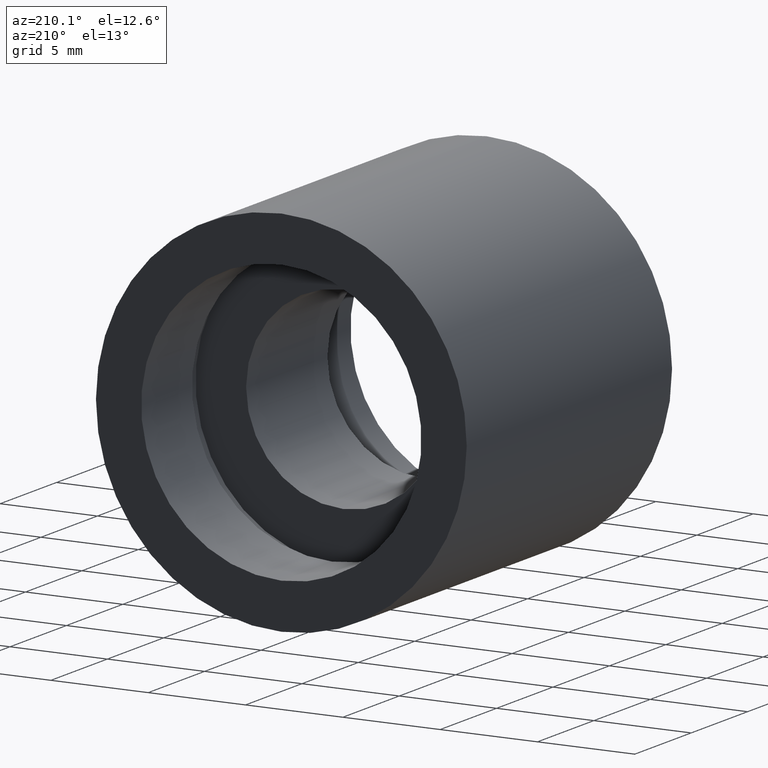
[diagram: clean part render]
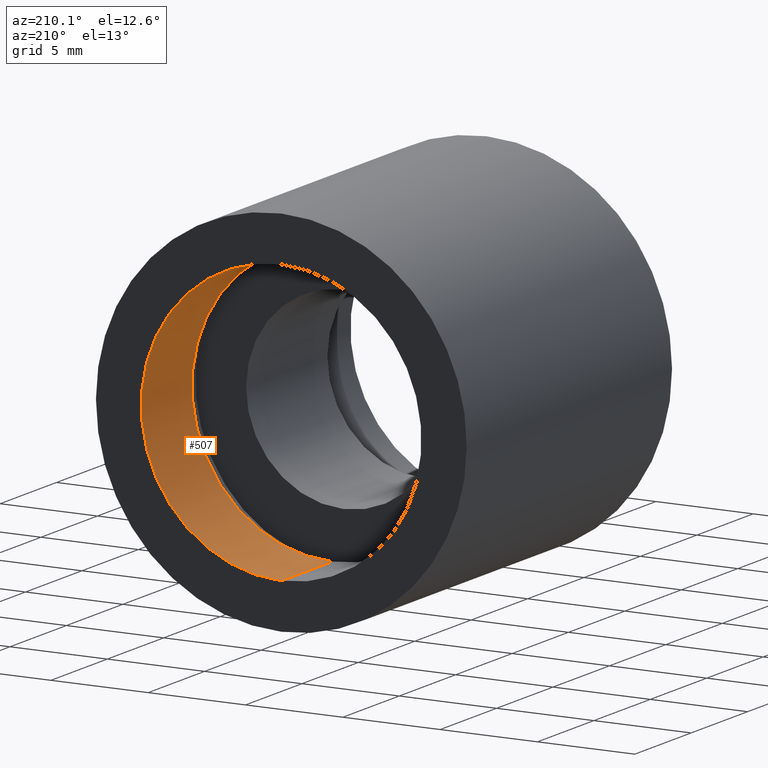
[diagram: same view with one face highlighted and labeled with its STEP entity id]
A machine part, auxiliary view. The second image highlights one B-rep face of the part: STEP entity #507.
In plain terms, the highlighted cylindrical surface (partial cylindrical patch) has radius 7.2 mm, axis along (-0, 1, -0).
Its self-contained STEP definition (entity closure, byte-faithful):
#2 = DIRECTION ( 'NONE',  ( -0.0000000000000000000, 1.000000000000000000, -0.0000000000000000000 ) ) ;
#4 = AXIS2_PLACEMENT_3D ( 'NONE', #235, #575, #347 ) ;
#39 = CARTESIAN_POINT ( 'NONE',  ( 8.817456953860961000E-016, 13.69999999999999000, -7.200000000000015300 ) ) ;
#44 = ORIENTED_EDGE ( 'NONE', *, *, #319, .T. ) ;
#48 = ORIENTED_EDGE ( 'NONE', *, *, #413, .F. ) ;
#72 = EDGE_CURVE ( 'NONE', #444, #535, #573, .T. ) ;
#87 = CARTESIAN_POINT ( 'NONE',  ( 8.817456953860963000E-016, 18.19999999999999600, -7.200000000000017100 ) ) ;
#137 = CARTESIAN_POINT ( 'NONE',  ( 8.817456953860961000E-016, 161.3761669434274500, -7.200000000000015300 ) ) ;
#170 = ORIENTED_EDGE ( 'NONE', *, *, #378, .F. ) ;
#171 = VERTEX_POINT ( 'NONE', #87 ) ;
#188 = CYLINDRICAL_SURFACE ( 'NONE', #4, 7.200000000000015300 ) ;
#235 = CARTESIAN_POINT ( 'NONE',  ( 0.0000000000000000000, 161.3761669434274500, 0.0000000000000000000 ) ) ;
#238 = CARTESIAN_POINT ( 'NONE',  ( 0.0000000000000000000, 13.69999999999999000, 7.200000000000015300 ) ) ;
#242 = VECTOR ( 'NONE', #280, 1000.000000000000000 ) ;
#262 = AXIS2_PLACEMENT_3D ( 'NONE', #558, #468, #612 ) ;
#280 = DIRECTION ( 'NONE',  ( -0.0000000000000000000, 1.000000000000000000, -0.0000000000000000000 ) ) ;
#317 = AXIS2_PLACEMENT_3D ( 'NONE', #479, #2, #622 ) ;
#319 = EDGE_CURVE ( 'NONE', #535, #171, #331, .T. ) ;
#326 = ORIENTED_EDGE ( 'NONE', *, *, #72, .T. ) ;
#331 = CIRCLE ( 'NONE', #262, 7.200000000000016200 ) ;
#347 = DIRECTION ( 'NONE',  ( 0.0000000000000000000, 0.0000000000000000000, 1.000000000000000000 ) ) ;
#349 = DIRECTION ( 'NONE',  ( -0.0000000000000000000, 1.000000000000000000, -0.0000000000000000000 ) ) ;
#378 = EDGE_CURVE ( 'NONE', #467, #171, #591, .T. ) ;
#391 = VECTOR ( 'NONE', #349, 1000.000000000000000 ) ;
#413 = EDGE_CURVE ( 'NONE', #444, #467, #608, .T. ) ;
#430 = EDGE_LOOP ( 'NONE', ( #170, #48, #326, #44 ) ) ;
#444 = VERTEX_POINT ( 'NONE', #238 ) ;
#453 = FACE_OUTER_BOUND ( 'NONE', #430, .T. ) ;
#467 = VERTEX_POINT ( 'NONE', #39 ) ;
#468 = DIRECTION ( 'NONE',  ( -0.0000000000000000000, 1.000000000000000000, -0.0000000000000000000 ) ) ;
#479 = CARTESIAN_POINT ( 'NONE',  ( 0.0000000000000000000, 13.69999999999999000, 0.0000000000000000000 ) ) ;
#507 = ADVANCED_FACE ( 'NONE', ( #453 ), #188, .F. ) ;
#535 = VERTEX_POINT ( 'NONE', #542 ) ;
#542 = CARTESIAN_POINT ( 'NONE',  ( 0.0000000000000000000, 18.19999999999999600, 7.200000000000016200 ) ) ;
#558 = CARTESIAN_POINT ( 'NONE',  ( 0.0000000000000000000, 18.19999999999999600, 0.0000000000000000000 ) ) ;
#573 = LINE ( 'NONE', #587, #391 ) ;
#575 = DIRECTION ( 'NONE',  ( -0.0000000000000000000, 1.000000000000000000, -0.0000000000000000000 ) ) ;
#587 = CARTESIAN_POINT ( 'NONE',  ( 0.0000000000000000000, 161.3761669434274500, 7.200000000000015300 ) ) ;
#591 = LINE ( 'NONE', #137, #242 ) ;
#608 = CIRCLE ( 'NONE', #317, 7.200000000000015300 ) ;
#612 = DIRECTION ( 'NONE',  ( 0.0000000000000000000, 0.0000000000000000000, 1.000000000000000000 ) ) ;
#622 = DIRECTION ( 'NONE',  ( 0.0000000000000000000, 0.0000000000000000000, 1.000000000000000000 ) ) ;